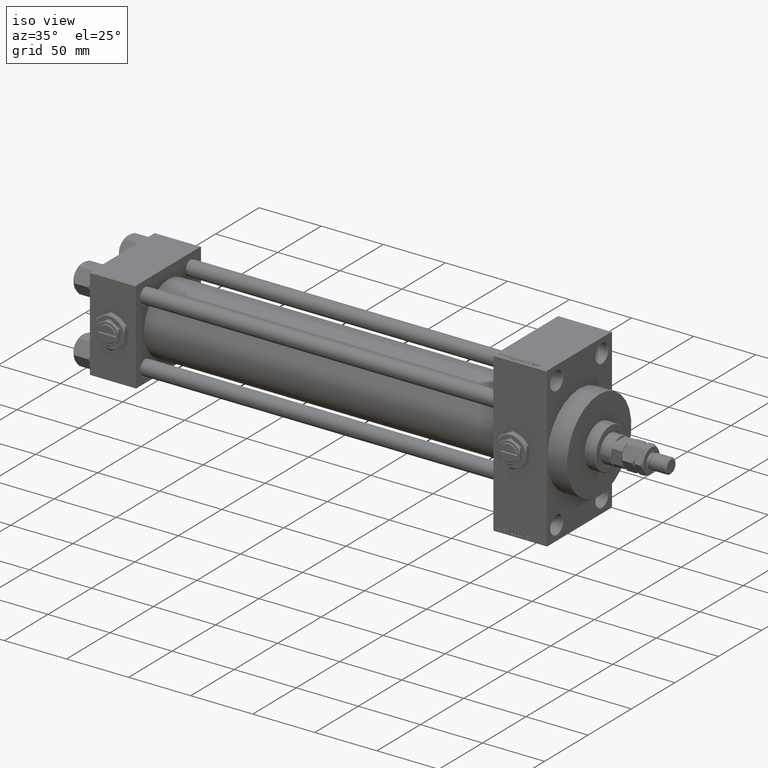
[diagram: clean part render]
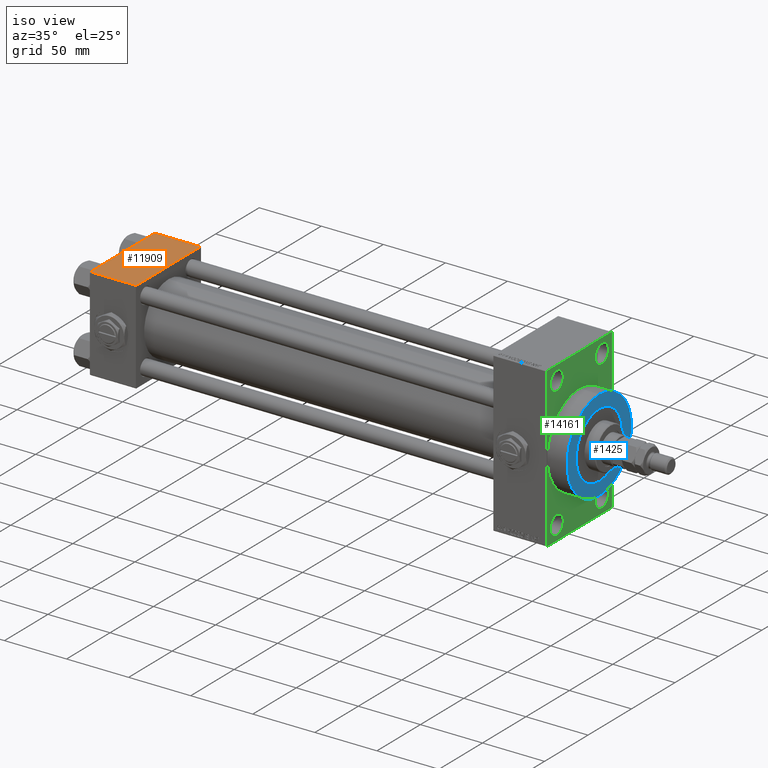
[diagram: same view with three faces highlighted in distinct colors, each labeled with its STEP entity id]
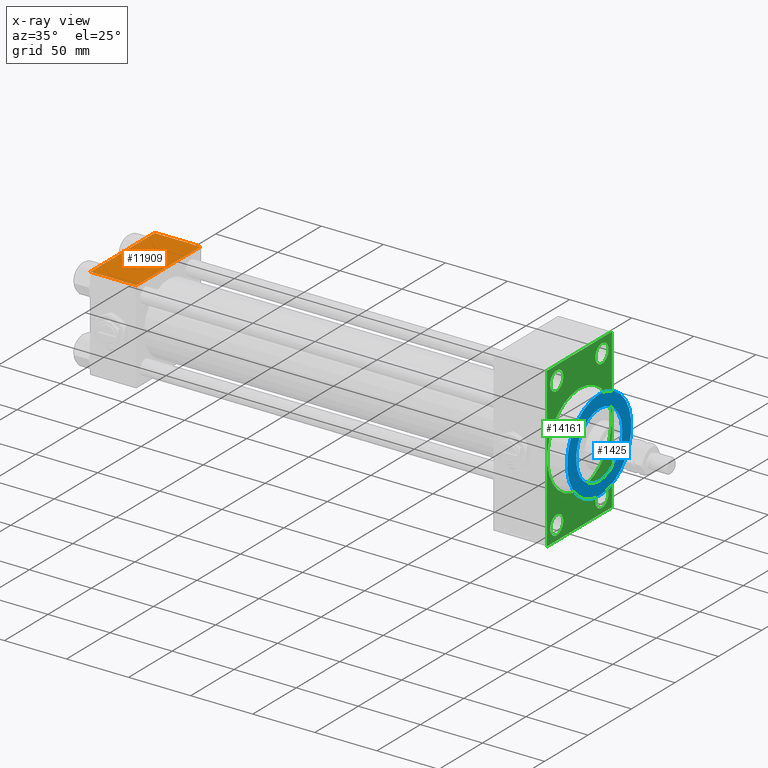
[diagram: x-ray of the same camera — body ghosted, the three highlighted faces saturated]
A machine part, iso view with three faces highlighted in distinct colors.
The next image is the same camera in x-ray (body ghosted, the three faces saturated) — at least one of them is partly hidden behind the body in this view.
Their STEP definitions:

[orange] entity #11909 — the highlighted planar face has unit normal (0, 0, -1).
#641 = CARTESIAN_POINT ( 'NONE',  ( 0.000000000000000000, 36.99999999999999289, 37.50000000000000000 ) ) ;
#1065 = CARTESIAN_POINT ( 'NONE',  ( 37.00000000000000000, -37.00000000000000711, 37.49999999999999289 ) ) ;
#3104 = EDGE_CURVE ( 'NONE', #17064, #3645, #4912, .T. ) ;
#3645 = VERTEX_POINT ( 'NONE', #13546 ) ;
#4649 = EDGE_CURVE ( 'NONE', #30499, #17064, #45151, .T. ) ;
#4660 = DIRECTION ( 'NONE',  ( 0.000000000000000000, -1.000000000000000000, -9.251858538542971581E-17 ) ) ;
#4912 = LINE ( 'NONE', #1065, #25097 ) ;
#7201 = LINE ( 'NONE', #38312, #30745 ) ;
#7339 = CARTESIAN_POINT ( 'NONE',  ( 0.000000000000000000, -37.00000000000000711, 37.49999999999999289 ) ) ;
#8514 = LINE ( 'NONE', #24196, #34433 ) ;
#9600 = EDGE_LOOP ( 'NONE', ( #19297, #38233, #23832, #14065 ) ) ;
#11241 = VERTEX_POINT ( 'NONE', #17961 ) ;
#11576 = AXIS2_PLACEMENT_3D ( 'NONE', #29917, #44845, #45605 ) ;
#11909 = ADVANCED_FACE ( 'NONE', ( #49463 ), #48449, .F. ) ;
#13546 = CARTESIAN_POINT ( 'NONE',  ( 37.00000000000000000, -37.00000000000000711, 37.49999999999999289 ) ) ;
#14065 = ORIENTED_EDGE ( 'NONE', *, *, #44072, .T. ) ;
#17064 = VERTEX_POINT ( 'NONE', #7339 ) ;
#17367 = CARTESIAN_POINT ( 'NONE',  ( 0.000000000000000000, 37.49999999999999289, 37.50000000000000000 ) ) ;
#17752 = DIRECTION ( 'NONE',  ( 1.000000000000000000, 0.000000000000000000, 0.000000000000000000 ) ) ;
#17961 = CARTESIAN_POINT ( 'NONE',  ( 37.00000000000000000, 36.99999999999999289, 37.50000000000000000 ) ) ;
#18713 = VECTOR ( 'NONE', #48491, 1000.000000000000000 ) ;
#19297 = ORIENTED_EDGE ( 'NONE', *, *, #4649, .T. ) ;
#22879 = DIRECTION ( 'NONE',  ( -1.000000000000000000, 0.000000000000000000, 0.000000000000000000 ) ) ;
#23488 = EDGE_CURVE ( 'NONE', #11241, #3645, #8514, .T. ) ;
#23832 = ORIENTED_EDGE ( 'NONE', *, *, #23488, .F. ) ;
#24196 = CARTESIAN_POINT ( 'NONE',  ( 37.00000000000000000, 37.49999999999999289, 37.50000000000000000 ) ) ;
#25097 = VECTOR ( 'NONE', #17752, 1000.000000000000000 ) ;
#29917 = CARTESIAN_POINT ( 'NONE',  ( 37.00000000000000000, 37.49999999999999289, 37.50000000000000000 ) ) ;
#30499 = VERTEX_POINT ( 'NONE', #641 ) ;
#30745 = VECTOR ( 'NONE', #22879, 1000.000000000000000 ) ;
#34433 = VECTOR ( 'NONE', #4660, 1000.000000000000000 ) ;
#38233 = ORIENTED_EDGE ( 'NONE', *, *, #3104, .T. ) ;
#38312 = CARTESIAN_POINT ( 'NONE',  ( 0.000000000000000000, 36.99999999999999289, 37.50000000000000000 ) ) ;
#44072 = EDGE_CURVE ( 'NONE', #11241, #30499, #7201, .T. ) ;
#44845 = DIRECTION ( 'NONE',  ( 0.000000000000000000, 9.251858538542971581E-17, -1.000000000000000000 ) ) ;
#45151 = LINE ( 'NONE', #17367, #18713 ) ;
#45605 = DIRECTION ( 'NONE',  ( 0.000000000000000000, 1.000000000000000000, 9.251858538542971581E-17 ) ) ;
#48449 = PLANE ( 'NONE',  #11576 ) ;
#48491 = DIRECTION ( 'NONE',  ( 0.000000000000000000, -1.000000000000000000, -9.251858538542971581E-17 ) ) ;
#49463 = FACE_OUTER_BOUND ( 'NONE', #9600, .T. ) ;

[blue] entity #1425 — the highlighted planar face has unit normal (1, 0, 0).
#1347 = CARTESIAN_POINT ( 'NONE',  ( 383.9999999999999432, 4.531193156845206793E-15, -37.00000000000000000 ) ) ;
#1425 = ADVANCED_FACE ( 'NONE', ( #13663, #18030 ), #24973, .T. ) ;
#5425 = DIRECTION ( 'NONE',  ( 0.000000000000000000, 0.000000000000000000, -1.000000000000000000 ) ) ;
#6697 = AXIS2_PLACEMENT_3D ( 'NONE', #27380, #30732, #11446 ) ;
#10443 = EDGE_CURVE ( 'NONE', #28452, #33153, #47530, .T. ) ;
#10883 = CARTESIAN_POINT ( 'NONE',  ( 383.9999999999999432, 0.000000000000000000, 0.000000000000000000 ) ) ;
#10916 = AXIS2_PLACEMENT_3D ( 'NONE', #36463, #25122, #32596 ) ;
#11446 = DIRECTION ( 'NONE',  ( 0.000000000000000000, 0.000000000000000000, -1.000000000000000000 ) ) ;
#11629 = CIRCLE ( 'NONE', #6697, 37.00000000000000000 ) ;
#12551 = EDGE_LOOP ( 'NONE', ( #31032, #23585 ) ) ;
#12808 = CARTESIAN_POINT ( 'NONE',  ( 383.9999999999999432, 0.000000000000000000, 37.00000000000000000 ) ) ;
#13663 = FACE_BOUND ( 'NONE', #22328, .T. ) ;
#14748 = DIRECTION ( 'NONE',  ( 1.000000000000000000, 0.000000000000000000, 0.000000000000000000 ) ) ;
#14999 = DIRECTION ( 'NONE',  ( 0.000000000000000000, 0.000000000000000000, -1.000000000000000000 ) ) ;
#15795 = VERTEX_POINT ( 'NONE', #12808 ) ;
#17261 = DIRECTION ( 'NONE',  ( 1.000000000000000000, 0.000000000000000000, 0.000000000000000000 ) ) ;
#18030 = FACE_OUTER_BOUND ( 'NONE', #12551, .T. ) ;
#20027 = EDGE_CURVE ( 'NONE', #33153, #28452, #34287, .T. ) ;
#22328 = EDGE_LOOP ( 'NONE', ( #42028, #29060 ) ) ;
#23585 = ORIENTED_EDGE ( 'NONE', *, *, #33964, .T. ) ;
#24973 = PLANE ( 'NONE',  #48990 ) ;
#25122 = DIRECTION ( 'NONE',  ( 1.000000000000000000, 0.000000000000000000, 0.000000000000000000 ) ) ;
#26988 = CARTESIAN_POINT ( 'NONE',  ( 383.9999999999999432, 0.000000000000000000, -26.50000000000000355 ) ) ;
#27380 = CARTESIAN_POINT ( 'NONE',  ( 383.9999999999999432, 0.000000000000000000, 0.000000000000000000 ) ) ;
#27704 = CARTESIAN_POINT ( 'NONE',  ( 383.9999999999999432, 0.000000000000000000, 0.000000000000000000 ) ) ;
#28452 = VERTEX_POINT ( 'NONE', #26988 ) ;
#28700 = DIRECTION ( 'NONE',  ( 0.000000000000000000, 0.000000000000000000, -1.000000000000000000 ) ) ;
#29060 = ORIENTED_EDGE ( 'NONE', *, *, #20027, .F. ) ;
#30732 = DIRECTION ( 'NONE',  ( 1.000000000000000000, 0.000000000000000000, 0.000000000000000000 ) ) ;
#31032 = ORIENTED_EDGE ( 'NONE', *, *, #36867, .T. ) ;
#32596 = DIRECTION ( 'NONE',  ( 0.000000000000000000, 0.000000000000000000, -1.000000000000000000 ) ) ;
#33153 = VERTEX_POINT ( 'NONE', #48424 ) ;
#33964 = EDGE_CURVE ( 'NONE', #40067, #15795, #11629, .T. ) ;
#34287 = CIRCLE ( 'NONE', #34400, 26.50000000000000355 ) ;
#34400 = AXIS2_PLACEMENT_3D ( 'NONE', #10883, #14748, #14999 ) ;
#36463 = CARTESIAN_POINT ( 'NONE',  ( 383.9999999999999432, 0.000000000000000000, 0.000000000000000000 ) ) ;
#36867 = EDGE_CURVE ( 'NONE', #15795, #40067, #45388, .T. ) ;
#38504 = AXIS2_PLACEMENT_3D ( 'NONE', #27704, #43656, #28700 ) ;
#40067 = VERTEX_POINT ( 'NONE', #1347 ) ;
#42028 = ORIENTED_EDGE ( 'NONE', *, *, #10443, .F. ) ;
#43656 = DIRECTION ( 'NONE',  ( 1.000000000000000000, 0.000000000000000000, 0.000000000000000000 ) ) ;
#45044 = CARTESIAN_POINT ( 'NONE',  ( 383.9999999999999432, 0.000000000000000000, 0.000000000000000000 ) ) ;
#45388 = CIRCLE ( 'NONE', #10916, 37.00000000000000000 ) ;
#47530 = CIRCLE ( 'NONE', #38504, 26.50000000000000355 ) ;
#48424 = CARTESIAN_POINT ( 'NONE',  ( 383.9999999999999432, 3.245314017740486554E-15, 26.50000000000000355 ) ) ;
#48990 = AXIS2_PLACEMENT_3D ( 'NONE', #45044, #17261, #5425 ) ;

[green] entity #14161 — the highlighted planar face has unit normal (-1, 0, 0).
#133 = DIRECTION ( 'NONE',  ( -1.000000000000000000, 0.000000000000000000, -0.000000000000000000 ) ) ;
#713 = ORIENTED_EDGE ( 'NONE', *, *, #43424, .F. ) ;
#875 = ORIENTED_EDGE ( 'NONE', *, *, #23162, .T. ) ;
#980 = CARTESIAN_POINT ( 'NONE',  ( 367.9999999999999432, 36.99999999999993605, -64.00000000000000000 ) ) ;
#996 = DIRECTION ( 'NONE',  ( -1.000000000000000000, 0.000000000000000000, -0.000000000000000000 ) ) ;
#1139 = CARTESIAN_POINT ( 'NONE',  ( 367.9999999999999432, 26.00000000000000000, 52.49999999999999289 ) ) ;
#1749 = DIRECTION ( 'NONE',  ( 0.000000000000000000, -5.421010862427522170E-17, -1.000000000000000000 ) ) ;
#2121 = DIRECTION ( 'NONE',  ( -1.000000000000000000, 0.000000000000000000, -0.000000000000000000 ) ) ;
#2986 = EDGE_CURVE ( 'NONE', #21154, #31578, #4685, .T. ) ;
#3212 = DIRECTION ( 'NONE',  ( 0.000000000000000000, -1.000000000000000000, -1.850371707708594563E-16 ) ) ;
#3272 = FACE_OUTER_BOUND ( 'NONE', #4080, .T. ) ;
#3513 = CARTESIAN_POINT ( 'NONE',  ( 367.9999999999999432, 37.49999999999999289, -63.50000000000001421 ) ) ;
#3940 = VECTOR ( 'NONE', #18457, 1000.000000000000000 ) ;
#4080 = EDGE_LOOP ( 'NONE', ( #45590, #20340, #713, #16953, #49860, #29647, #15910, #5585 ) ) ;
#4685 = CIRCLE ( 'NONE', #28490, 7.500000000000062172 ) ;
#4795 = VERTEX_POINT ( 'NONE', #38965 ) ;
#4822 = AXIS2_PLACEMENT_3D ( 'NONE', #10573, #34746, #46833 ) ;
#5234 = DIRECTION ( 'NONE',  ( 0.000000000000000000, 0.000000000000000000, 1.000000000000000000 ) ) ;
#5585 = ORIENTED_EDGE ( 'NONE', *, *, #11964, .T. ) ;
#5663 = CARTESIAN_POINT ( 'NONE',  ( 367.9999999999999432, -36.99999999999993605, -64.00000000000001421 ) ) ;
#6040 = VERTEX_POINT ( 'NONE', #24469 ) ;
#6164 = VERTEX_POINT ( 'NONE', #21621 ) ;
#6186 = CARTESIAN_POINT ( 'NONE',  ( 367.9999999999999432, 26.00000000000000000, -52.49999999999999289 ) ) ;
#6327 = LINE ( 'NONE', #3513, #39249 ) ;
#6469 = ORIENTED_EDGE ( 'NONE', *, *, #2986, .T. ) ;
#6891 = CARTESIAN_POINT ( 'NONE',  ( 367.9999999999999432, 37.50000000000000000, 63.99999999999998579 ) ) ;
#7359 = EDGE_LOOP ( 'NONE', ( #17040, #6469 ) ) ;
#8133 = DIRECTION ( 'NONE',  ( -1.000000000000000000, 0.000000000000000000, -0.000000000000000000 ) ) ;
#8148 = VERTEX_POINT ( 'NONE', #980 ) ;
#9079 = DIRECTION ( 'NONE',  ( 0.000000000000000000, 0.000000000000000000, 1.000000000000000000 ) ) ;
#9322 = CIRCLE ( 'NONE', #37240, 37.00000000000000000 ) ;
#10045 = CARTESIAN_POINT ( 'NONE',  ( 367.9999999999999432, 26.00000000000000000, -60.00000000000005684 ) ) ;
#10070 = CARTESIAN_POINT ( 'NONE',  ( 367.9999999999999432, -25.99999999999999645, -44.99999999999992895 ) ) ;
#10573 = CARTESIAN_POINT ( 'NONE',  ( 367.9999999999999432, 0.000000000000000000, 0.000000000000000000 ) ) ;
#10714 = FACE_BOUND ( 'NONE', #7359, .T. ) ;
#10929 = EDGE_CURVE ( 'NONE', #18749, #4795, #42664, .T. ) ;
#11697 = VECTOR ( 'NONE', #42931, 1000.000000000000114 ) ;
#11964 = EDGE_CURVE ( 'NONE', #49806, #36406, #30945, .T. ) ;
#12590 = ORIENTED_EDGE ( 'NONE', *, *, #24025, .F. ) ;
#13491 = CARTESIAN_POINT ( 'NONE',  ( 367.9999999999999432, -37.49999999999999289, 63.49999999999991473 ) ) ;
#13638 = ORIENTED_EDGE ( 'NONE', *, *, #42747, .F. ) ;
#13756 = VERTEX_POINT ( 'NONE', #46337 ) ;
#13864 = LINE ( 'NONE', #29550, #28091 ) ;
#13958 = DIRECTION ( 'NONE',  ( 0.000000000000000000, 0.000000000000000000, 1.000000000000000000 ) ) ;
#14018 = CARTESIAN_POINT ( 'NONE',  ( 367.9999999999999432, 4.531193156845206793E-15, -37.00000000000000000 ) ) ;
#14077 = CARTESIAN_POINT ( 'NONE',  ( 367.9999999999999432, 0.000000000000000000, 0.000000000000000000 ) ) ;
#14161 = ADVANCED_FACE ( 'NONE', ( #45952, #10714, #26916, #47224, #38758, #3272 ), #50322, .F. ) ;
#14457 = CARTESIAN_POINT ( 'NONE',  ( 367.9999999999999432, 26.00000000000000000, -52.49999999999999289 ) ) ;
#15153 = EDGE_CURVE ( 'NONE', #6164, #28779, #47357, .T. ) ;
#15282 = LINE ( 'NONE', #27365, #39741 ) ;
#15626 = CARTESIAN_POINT ( 'NONE',  ( 367.9999999999999432, 26.00000000000000000, 60.00000000000005684 ) ) ;
#15734 = AXIS2_PLACEMENT_3D ( 'NONE', #43529, #32609, #17686 ) ;
#15858 = EDGE_CURVE ( 'NONE', #27883, #48139, #21282, .T. ) ;
#15910 = ORIENTED_EDGE ( 'NONE', *, *, #17975, .T. ) ;
#16600 = CARTESIAN_POINT ( 'NONE',  ( 367.9999999999999432, -25.99999999999999645, 60.00000000000005684 ) ) ;
#16807 = DIRECTION ( 'NONE',  ( -1.000000000000000000, 0.000000000000000000, -0.000000000000000000 ) ) ;
#16851 = EDGE_CURVE ( 'NONE', #28779, #6164, #50700, .T. ) ;
#16953 = ORIENTED_EDGE ( 'NONE', *, *, #20763, .T. ) ;
#17040 = ORIENTED_EDGE ( 'NONE', *, *, #34030, .T. ) ;
#17187 = AXIS2_PLACEMENT_3D ( 'NONE', #1139, #16807, #5234 ) ;
#17686 = DIRECTION ( 'NONE',  ( 0.000000000000000000, 0.000000000000000000, 1.000000000000000000 ) ) ;
#17935 = DIRECTION ( 'NONE',  ( 0.000000000000000000, 0.000000000000000000, -1.000000000000000000 ) ) ;
#17975 = EDGE_CURVE ( 'NONE', #13756, #49806, #38266, .T. ) ;
#18231 = EDGE_LOOP ( 'NONE', ( #39648, #875 ) ) ;
#18457 = DIRECTION ( 'NONE',  ( 0.000000000000000000, -1.000000000000000000, -1.850371707708594563E-16 ) ) ;
#18749 = VERTEX_POINT ( 'NONE', #15626 ) ;
#18798 = DIRECTION ( 'NONE',  ( -1.000000000000000000, 0.000000000000000000, -0.000000000000000000 ) ) ;
#19076 = AXIS2_PLACEMENT_3D ( 'NONE', #35370, #133, #9079 ) ;
#20186 = DIRECTION ( 'NONE',  ( 0.000000000000000000, 0.000000000000000000, 1.000000000000000000 ) ) ;
#20340 = ORIENTED_EDGE ( 'NONE', *, *, #35884, .T. ) ;
#20586 = CARTESIAN_POINT ( 'NONE',  ( 367.9999999999999432, -36.99999999999992895, 63.99999999999997158 ) ) ;
#20763 = EDGE_CURVE ( 'NONE', #8148, #48139, #6327, .T. ) ;
#20910 = CARTESIAN_POINT ( 'NONE',  ( 367.9999999999999432, 36.99999999999994316, 63.99999999999998579 ) ) ;
#21154 = VERTEX_POINT ( 'NONE', #10070 ) ;
#21282 = LINE ( 'NONE', #21535, #32576 ) ;
#21535 = CARTESIAN_POINT ( 'NONE',  ( 367.9999999999999432, 37.50000000000000000, 63.99999999999998579 ) ) ;
#21621 = CARTESIAN_POINT ( 'NONE',  ( 367.9999999999999432, -25.99999999999999645, 44.99999999999993605 ) ) ;
#22397 = VERTEX_POINT ( 'NONE', #37798 ) ;
#23047 = CARTESIAN_POINT ( 'NONE',  ( 367.9999999999999432, -25.99999999999999645, -52.49999999999999289 ) ) ;
#23058 = CARTESIAN_POINT ( 'NONE',  ( 367.9999999999999432, 37.50000000000000000, 63.49999999999998579 ) ) ;
#23162 = EDGE_CURVE ( 'NONE', #22397, #46972, #26142, .T. ) ;
#23803 = DIRECTION ( 'NONE',  ( -1.000000000000000000, 0.000000000000000000, -0.000000000000000000 ) ) ;
#23985 = VECTOR ( 'NONE', #32247, 1000.000000000000000 ) ;
#24025 = EDGE_CURVE ( 'NONE', #6040, #28889, #36044, .T. ) ;
#24469 = CARTESIAN_POINT ( 'NONE',  ( 367.9999999999999432, 0.000000000000000000, 37.00000000000000000 ) ) ;
#25115 = AXIS2_PLACEMENT_3D ( 'NONE', #42620, #8133, #47478 ) ;
#25487 = ORIENTED_EDGE ( 'NONE', *, *, #16851, .T. ) ;
#25912 = EDGE_LOOP ( 'NONE', ( #35943, #47287 ) ) ;
#25946 = CIRCLE ( 'NONE', #41573, 7.500000000000062172 ) ;
#26142 = CIRCLE ( 'NONE', #40116, 7.500000000000062172 ) ;
#26916 = FACE_BOUND ( 'NONE', #18231, .T. ) ;
#27365 = CARTESIAN_POINT ( 'NONE',  ( 367.9999999999999432, 37.49999999999999289, -64.00000000000000000 ) ) ;
#27496 = CARTESIAN_POINT ( 'NONE',  ( 367.9999999999999432, -25.99999999999999645, 52.50000000000000000 ) ) ;
#27883 = VERTEX_POINT ( 'NONE', #23058 ) ;
#28091 = VECTOR ( 'NONE', #45243, 1000.000000000000000 ) ;
#28432 = CARTESIAN_POINT ( 'NONE',  ( 367.9999999999999432, -25.99999999999999645, 52.50000000000000000 ) ) ;
#28490 = AXIS2_PLACEMENT_3D ( 'NONE', #23047, #23803, #20186 ) ;
#28779 = VERTEX_POINT ( 'NONE', #16600 ) ;
#28853 = CIRCLE ( 'NONE', #19076, 7.500000000000062172 ) ;
#28889 = VERTEX_POINT ( 'NONE', #14018 ) ;
#29550 = CARTESIAN_POINT ( 'NONE',  ( 367.9999999999999432, -37.49999999999999289, 63.99999999999997158 ) ) ;
#29647 = ORIENTED_EDGE ( 'NONE', *, *, #34085, .T. ) ;
#30578 = LINE ( 'NONE', #34695, #11697 ) ;
#30819 = EDGE_LOOP ( 'NONE', ( #42715, #25487 ) ) ;
#30945 = LINE ( 'NONE', #46122, #38713 ) ;
#31375 = VERTEX_POINT ( 'NONE', #34932 ) ;
#31578 = VERTEX_POINT ( 'NONE', #49754 ) ;
#32137 = EDGE_LOOP ( 'NONE', ( #12590, #13638 ) ) ;
#32247 = DIRECTION ( 'NONE',  ( 0.000000000000000000, -0.7071067811865867636, 0.7071067811865081598 ) ) ;
#32547 = DIRECTION ( 'NONE',  ( -1.000000000000000000, 0.000000000000000000, -0.000000000000000000 ) ) ;
#32576 = VECTOR ( 'NONE', #1749, 1000.000000000000000 ) ;
#32609 = DIRECTION ( 'NONE',  ( -1.000000000000000000, 0.000000000000000000, -0.000000000000000000 ) ) ;
#33376 = EDGE_CURVE ( 'NONE', #4795, #18749, #44582, .T. ) ;
#34030 = EDGE_CURVE ( 'NONE', #31578, #21154, #28853, .T. ) ;
#34085 = EDGE_CURVE ( 'NONE', #27883, #13756, #44580, .T. ) ;
#34695 = CARTESIAN_POINT ( 'NONE',  ( 367.9999999999999432, -36.99999999999993605, -64.00000000000001421 ) ) ;
#34746 = DIRECTION ( 'NONE',  ( 1.000000000000000000, 0.000000000000000000, 0.000000000000000000 ) ) ;
#34932 = CARTESIAN_POINT ( 'NONE',  ( 367.9999999999999432, -37.49999999999999289, -63.50000000000002842 ) ) ;
#35004 = EDGE_CURVE ( 'NONE', #36406, #31375, #13864, .T. ) ;
#35370 = CARTESIAN_POINT ( 'NONE',  ( 367.9999999999999432, -25.99999999999999645, -52.49999999999999289 ) ) ;
#35884 = EDGE_CURVE ( 'NONE', #31375, #37978, #30578, .T. ) ;
#35943 = ORIENTED_EDGE ( 'NONE', *, *, #33376, .T. ) ;
#36044 = CIRCLE ( 'NONE', #4822, 37.00000000000000000 ) ;
#36406 = VERTEX_POINT ( 'NONE', #13491 ) ;
#36732 = AXIS2_PLACEMENT_3D ( 'NONE', #28432, #32547, #47747 ) ;
#37240 = AXIS2_PLACEMENT_3D ( 'NONE', #14077, #48792, #17935 ) ;
#37798 = CARTESIAN_POINT ( 'NONE',  ( 367.9999999999999432, 26.00000000000000000, -44.99999999999992895 ) ) ;
#37978 = VERTEX_POINT ( 'NONE', #5663 ) ;
#38020 = CARTESIAN_POINT ( 'NONE',  ( 367.9999999999999432, 37.49999999999999289, -63.50000000000001421 ) ) ;
#38266 = LINE ( 'NONE', #6891, #3940 ) ;
#38713 = VECTOR ( 'NONE', #41764, 1000.000000000000000 ) ;
#38758 = FACE_BOUND ( 'NONE', #32137, .T. ) ;
#38965 = CARTESIAN_POINT ( 'NONE',  ( 367.9999999999999432, 26.00000000000000000, 44.99999999999992895 ) ) ;
#39249 = VECTOR ( 'NONE', #43106, 1000.000000000000114 ) ;
#39341 = DIRECTION ( 'NONE',  ( 0.000000000000000000, 0.000000000000000000, 1.000000000000000000 ) ) ;
#39648 = ORIENTED_EDGE ( 'NONE', *, *, #47956, .T. ) ;
#39741 = VECTOR ( 'NONE', #3212, 1000.000000000000000 ) ;
#40116 = AXIS2_PLACEMENT_3D ( 'NONE', #14457, #2121, #13958 ) ;
#41573 = AXIS2_PLACEMENT_3D ( 'NONE', #6186, #18798, #49396 ) ;
#41589 = AXIS2_PLACEMENT_3D ( 'NONE', #27496, #996, #39341 ) ;
#41764 = DIRECTION ( 'NONE',  ( -0.000000000000000000, -0.7071067811865524577, -0.7071067811865426878 ) ) ;
#42620 = CARTESIAN_POINT ( 'NONE',  ( 367.9999999999999432, 0.000000000000000000, 0.000000000000000000 ) ) ;
#42664 = CIRCLE ( 'NONE', #17187, 7.500000000000062172 ) ;
#42715 = ORIENTED_EDGE ( 'NONE', *, *, #15153, .T. ) ;
#42747 = EDGE_CURVE ( 'NONE', #28889, #6040, #9322, .T. ) ;
#42931 = DIRECTION ( 'NONE',  ( 0.000000000000000000, 0.7071067811865965336, -0.7071067811864985009 ) ) ;
#43106 = DIRECTION ( 'NONE',  ( -0.000000000000000000, 0.7071067811865965336, 0.7071067811864985009 ) ) ;
#43424 = EDGE_CURVE ( 'NONE', #8148, #37978, #15282, .T. ) ;
#43529 = CARTESIAN_POINT ( 'NONE',  ( 367.9999999999999432, 26.00000000000000000, 52.49999999999999289 ) ) ;
#44580 = LINE ( 'NONE', #20910, #23985 ) ;
#44582 = CIRCLE ( 'NONE', #15734, 7.500000000000062172 ) ;
#45243 = DIRECTION ( 'NONE',  ( 0.000000000000000000, 0.000000000000000000, -1.000000000000000000 ) ) ;
#45590 = ORIENTED_EDGE ( 'NONE', *, *, #35004, .T. ) ;
#45952 = FACE_BOUND ( 'NONE', #30819, .T. ) ;
#46122 = CARTESIAN_POINT ( 'NONE',  ( 367.9999999999999432, -37.49999999999999289, 63.49999999999991473 ) ) ;
#46337 = CARTESIAN_POINT ( 'NONE',  ( 367.9999999999999432, 36.99999999999994316, 63.99999999999998579 ) ) ;
#46833 = DIRECTION ( 'NONE',  ( 0.000000000000000000, 0.000000000000000000, -1.000000000000000000 ) ) ;
#46972 = VERTEX_POINT ( 'NONE', #10045 ) ;
#47224 = FACE_BOUND ( 'NONE', #25912, .T. ) ;
#47287 = ORIENTED_EDGE ( 'NONE', *, *, #10929, .T. ) ;
#47357 = CIRCLE ( 'NONE', #41589, 7.500000000000062172 ) ;
#47478 = DIRECTION ( 'NONE',  ( -0.000000000000000000, 0.000000000000000000, 1.000000000000000000 ) ) ;
#47747 = DIRECTION ( 'NONE',  ( 0.000000000000000000, 0.000000000000000000, 1.000000000000000000 ) ) ;
#47956 = EDGE_CURVE ( 'NONE', #46972, #22397, #25946, .T. ) ;
#48139 = VERTEX_POINT ( 'NONE', #38020 ) ;
#48792 = DIRECTION ( 'NONE',  ( 1.000000000000000000, 0.000000000000000000, 0.000000000000000000 ) ) ;
#49396 = DIRECTION ( 'NONE',  ( 0.000000000000000000, 0.000000000000000000, 1.000000000000000000 ) ) ;
#49754 = CARTESIAN_POINT ( 'NONE',  ( 367.9999999999999432, -25.99999999999999645, -60.00000000000005684 ) ) ;
#49806 = VERTEX_POINT ( 'NONE', #20586 ) ;
#49860 = ORIENTED_EDGE ( 'NONE', *, *, #15858, .F. ) ;
#50322 = PLANE ( 'NONE',  #25115 ) ;
#50700 = CIRCLE ( 'NONE', #36732, 7.500000000000062172 ) ;